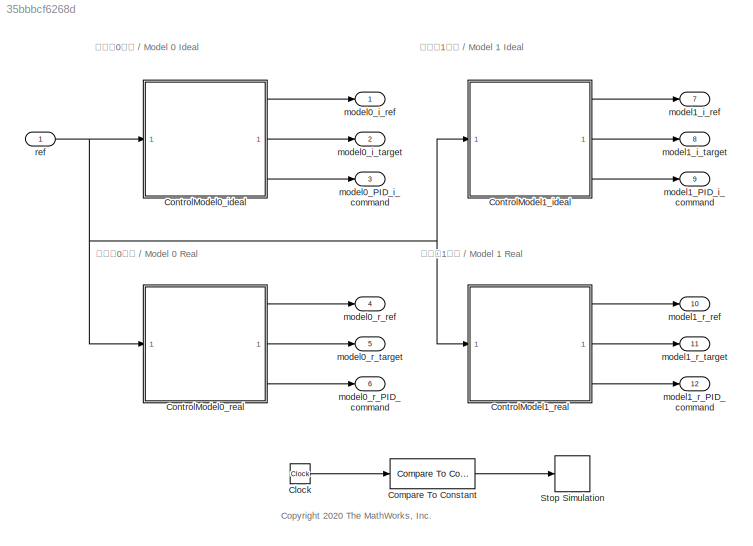
MODEL slx_35bbbcf6268d
KIND model
CONFIG AbsTol = auto
CONFIG EnableMultiTasking = off
CONFIG FixedStep = auto
CONFIG MaxStep = auto
CONFIG MinStep = auto
CONFIG RelTol = 1e-3
CONFIG SampleTimeConstraint = Unconstrained
CONFIG SolverName = VariableStepAuto
CONFIG StartTime = 0.0
CONFIG StopTime = 100
BLOCK [Clock] Clock
BLOCK [Reference] Compare To Constant  REF=simulink/Logic and Bit
Operations/Compare
To Constant
  SourceBlock = simulink/Logic and Bit\nOperations/Compare\nTo Constant
  SourceType = Compare To Constant
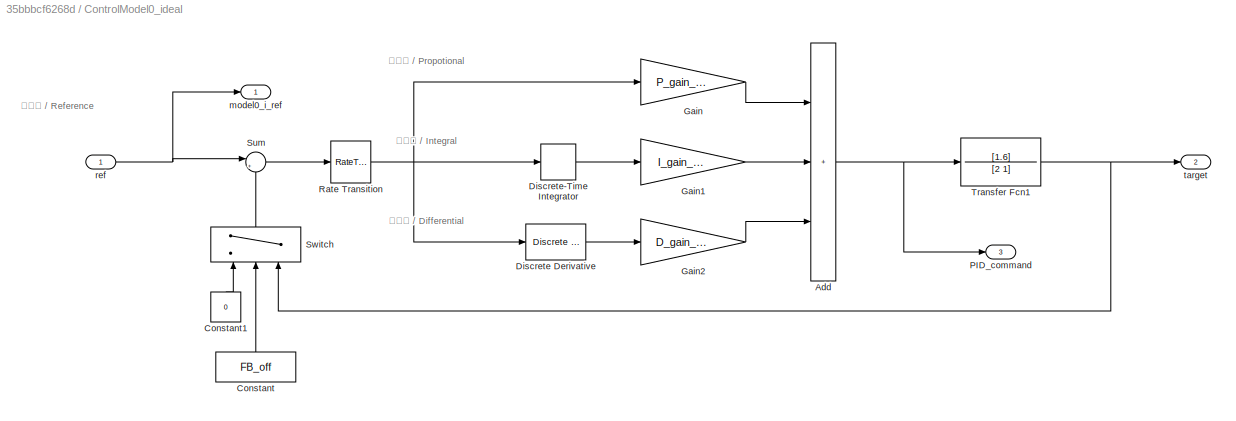
BLOCK [SubSystem] ControlModel0_ideal
BLOCK [Sum] ControlModel0_ideal/Add
  IconShape = rectangular
  Inputs = +++
BLOCK [Constant] ControlModel0_ideal/Constant
  NameLocation = right
  OutDataTypeStr = boolean
  Value = FB_off
BLOCK [Constant] ControlModel0_ideal/Constant1
  NameLocation = right
  Value = 0
BLOCK [Reference] ControlModel0_ideal/Discrete Derivative  REF=simulink/Discrete/Discrete Derivative
  SourceBlock = simulink/Discrete/Discrete Derivative
  SourceType = Discrete Derivative
BLOCK [DiscreteIntegrator] ControlModel0_ideal/Discrete-Time Integrator
  ICPrevOutput = DiscIntNeverNeededParam
  ICPrevScaledInput = DiscIntNeverNeededParam
  InitialConditionSetting = Auto
  SampleTime = -1
BLOCK [Gain] ControlModel0_ideal/Gain
  Gain = P_gain_model
BLOCK [Gain] ControlModel0_ideal/Gain1
  Gain = I_gain_model
BLOCK [Gain] ControlModel0_ideal/Gain2
  Gain = D_gain_model
BLOCK [Outport] ControlModel0_ideal/PID_command
  Port = 3
BLOCK [RateTransition] ControlModel0_ideal/Rate Transition
  OutPortSampleTime = TimeStep
BLOCK [Sum] ControlModel0_ideal/Sum
  Inputs = |+-
BLOCK [Switch] ControlModel0_ideal/Switch
  Criteria = u2 > Threshold
  InputSameDT = off
  NameLocation = right
  SaturateOnIntegerOverflow = off
BLOCK [TransferFcn] ControlModel0_ideal/Transfer Fcn1
  Denominator = [2 1]
  Numerator = [1.6]
BLOCK [Outport] ControlModel0_ideal/model0_i_ref
BLOCK [Inport] ControlModel0_ideal/ref
BLOCK [Outport] ControlModel0_ideal/target
  Port = 2
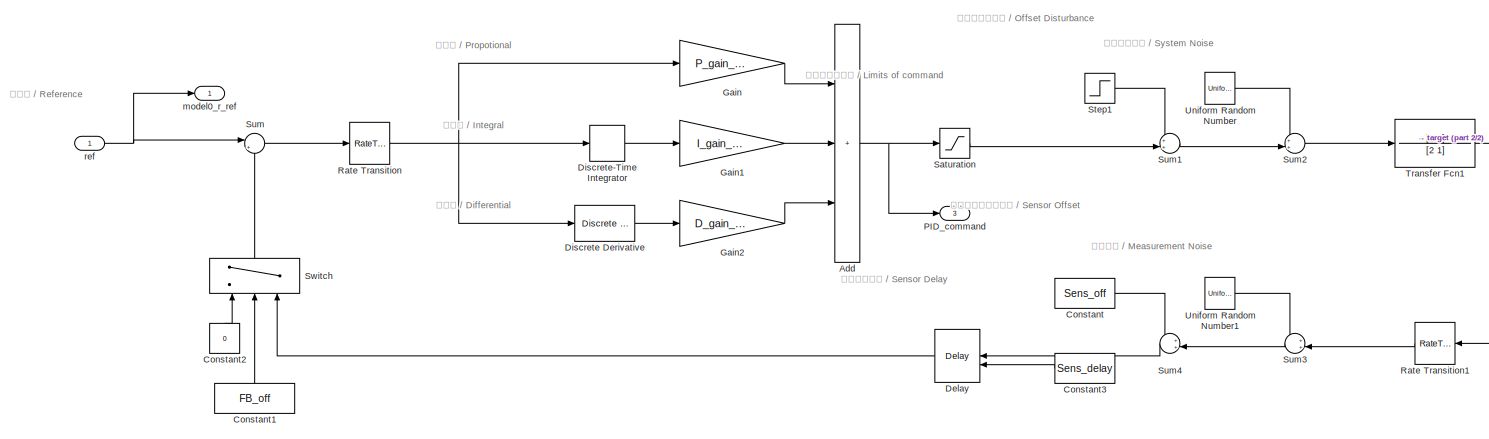
[diagram: ControlModel0_real - part 1/2, most of the canvas]
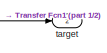
[diagram: ControlModel0_real - part 2/2, middle right region]
BLOCK [SubSystem] ControlModel0_real
BLOCK [Sum] ControlModel0_real/Add
  IconShape = rectangular
  Inputs = +++
BLOCK [Constant] ControlModel0_real/Constant
  Value = Sens_off
BLOCK [Constant] ControlModel0_real/Constant1
  NameLocation = right
  OutDataTypeStr = boolean
  Value = FB_off
BLOCK [Constant] ControlModel0_real/Constant2
  NameLocation = right
  Value = 0
BLOCK [Constant] ControlModel0_real/Constant3
  Value = Sens_delay
BLOCK [Delay] ControlModel0_real/Delay
  DelayLength = Sens_delay
  DelayLengthSource = Input port
  InputPortMap = u0,p1
BLOCK [Reference] ControlModel0_real/Discrete Derivative  REF=simulink/Discrete/Discrete Derivative
  SourceBlock = simulink/Discrete/Discrete Derivative
  SourceType = Discrete Derivative
BLOCK [DiscreteIntegrator] ControlModel0_real/Discrete-Time Integrator
  ICPrevOutput = DiscIntNeverNeededParam
  ICPrevScaledInput = DiscIntNeverNeededParam
  InitialConditionSetting = Auto
  SampleTime = -1
BLOCK [Gain] ControlModel0_real/Gain
  Gain = P_gain_model
BLOCK [Gain] ControlModel0_real/Gain1
  Gain = I_gain_model
BLOCK [Gain] ControlModel0_real/Gain2
  Gain = D_gain_model
BLOCK [Outport] ControlModel0_real/PID_command
  Port = 3
BLOCK [RateTransition] ControlModel0_real/Rate Transition
  OutPortSampleTime = TimeStep
BLOCK [RateTransition] ControlModel0_real/Rate Transition1
  OutPortSampleTime = TimeStep
BLOCK [Saturate] ControlModel0_real/Saturation
  LowerLimit = -Limits
  UpperLimit = Limits
BLOCK [Step] ControlModel0_real/Step1
  After = Off_dist
  SampleTime = TimeStep
  Time = 5
BLOCK [Sum] ControlModel0_real/Sum
  Inputs = |+-
BLOCK [Sum] ControlModel0_real/Sum1
  Inputs = ++|
BLOCK [Sum] ControlModel0_real/Sum2
  Inputs = ++|
BLOCK [Sum] ControlModel0_real/Sum3
  Inputs = ++|
BLOCK [Sum] ControlModel0_real/Sum4
  Inputs = ++|
BLOCK [Switch] ControlModel0_real/Switch
  Criteria = u2 > Threshold
  InputSameDT = off
  NameLocation = right
  SaturateOnIntegerOverflow = off
BLOCK [TransferFcn] ControlModel0_real/Transfer Fcn1
  Denominator = [2 1]
  Numerator = [1.6]
BLOCK [UniformRandomNumber] ControlModel0_real/Uniform Random Number
  Maximum = System_noise
  Minimum = -System_noise
  SampleTime = TimeStep
BLOCK [UniformRandomNumber] ControlModel0_real/Uniform Random Number1
  Maximum = Sensor_noise
  Minimum = -Sensor_noise
  SampleTime = TimeStep
  Seed = 1
BLOCK [Outport] ControlModel0_real/model0_r_ref
BLOCK [Inport] ControlModel0_real/ref
BLOCK [Outport] ControlModel0_real/target
  Port = 2
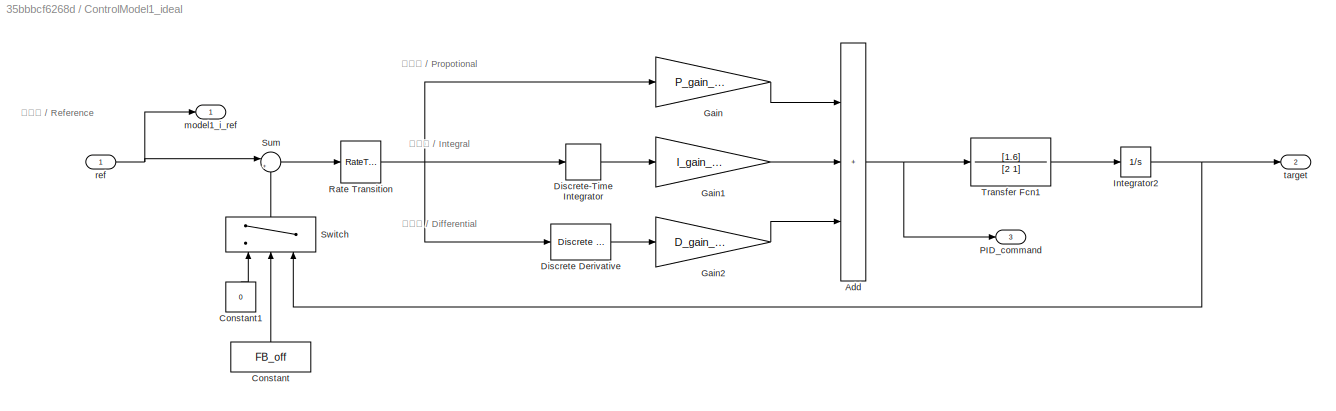
BLOCK [SubSystem] ControlModel1_ideal
BLOCK [Sum] ControlModel1_ideal/Add
  IconShape = rectangular
  Inputs = +++
BLOCK [Constant] ControlModel1_ideal/Constant
  NameLocation = right
  OutDataTypeStr = boolean
  Value = FB_off
BLOCK [Constant] ControlModel1_ideal/Constant1
  NameLocation = right
  Value = 0
BLOCK [Reference] ControlModel1_ideal/Discrete Derivative  REF=simulink/Discrete/Discrete Derivative
  SourceBlock = simulink/Discrete/Discrete Derivative
  SourceType = Discrete Derivative
BLOCK [DiscreteIntegrator] ControlModel1_ideal/Discrete-Time Integrator
  ICPrevOutput = DiscIntNeverNeededParam
  ICPrevScaledInput = DiscIntNeverNeededParam
  InitialConditionSetting = Auto
  SampleTime = -1
BLOCK [Gain] ControlModel1_ideal/Gain
  Gain = P_gain_model
BLOCK [Gain] ControlModel1_ideal/Gain1
  Gain = I_gain_model
BLOCK [Gain] ControlModel1_ideal/Gain2
  Gain = D_gain_model
BLOCK [Integrator] ControlModel1_ideal/Integrator2
BLOCK [Outport] ControlModel1_ideal/PID_command
  Port = 3
BLOCK [RateTransition] ControlModel1_ideal/Rate Transition
  OutPortSampleTime = TimeStep
BLOCK [Sum] ControlModel1_ideal/Sum
  Inputs = |+-
BLOCK [Switch] ControlModel1_ideal/Switch
  Criteria = u2 > Threshold
  InputSameDT = off
  NameLocation = right
  SaturateOnIntegerOverflow = off
BLOCK [TransferFcn] ControlModel1_ideal/Transfer Fcn1
  Denominator = [2 1]
  Numerator = [1.6]
BLOCK [Outport] ControlModel1_ideal/model1_i_ref
BLOCK [Inport] ControlModel1_ideal/ref
BLOCK [Outport] ControlModel1_ideal/target
  Port = 2
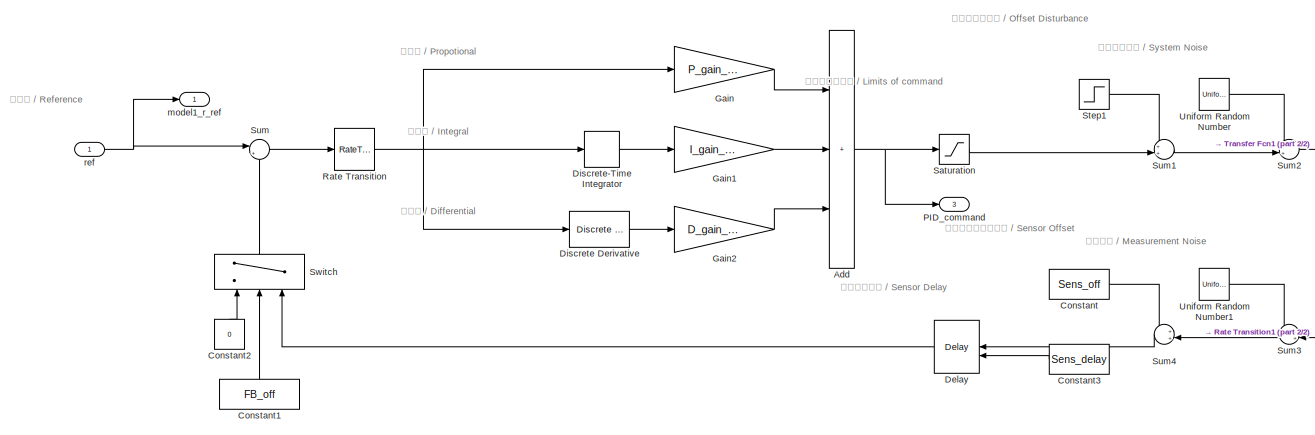
[diagram: ControlModel1_real - part 1/2, most of the canvas]
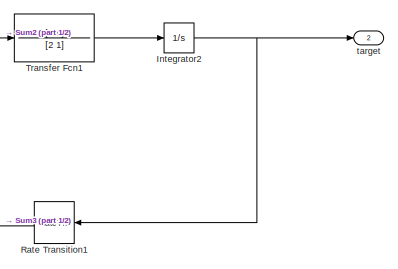
[diagram: ControlModel1_real - part 2/2, middle right region]
BLOCK [SubSystem] ControlModel1_real
BLOCK [Sum] ControlModel1_real/Add
  IconShape = rectangular
  Inputs = +++
BLOCK [Constant] ControlModel1_real/Constant
  Value = Sens_off
BLOCK [Constant] ControlModel1_real/Constant1
  NameLocation = right
  OutDataTypeStr = boolean
  Value = FB_off
BLOCK [Constant] ControlModel1_real/Constant2
  NameLocation = right
  Value = 0
BLOCK [Constant] ControlModel1_real/Constant3
  Value = Sens_delay
BLOCK [Delay] ControlModel1_real/Delay
  DelayLength = Sens_delay
  DelayLengthSource = Input port
  InputPortMap = u0,p1
BLOCK [Reference] ControlModel1_real/Discrete Derivative  REF=simulink/Discrete/Discrete Derivative
  SourceBlock = simulink/Discrete/Discrete Derivative
  SourceType = Discrete Derivative
BLOCK [DiscreteIntegrator] ControlModel1_real/Discrete-Time Integrator
  ICPrevOutput = DiscIntNeverNeededParam
  ICPrevScaledInput = DiscIntNeverNeededParam
  InitialConditionSetting = Auto
  SampleTime = -1
BLOCK [Gain] ControlModel1_real/Gain
  Gain = P_gain_model
BLOCK [Gain] ControlModel1_real/Gain1
  Gain = I_gain_model
BLOCK [Gain] ControlModel1_real/Gain2
  Gain = D_gain_model
BLOCK [Integrator] ControlModel1_real/Integrator2
BLOCK [Outport] ControlModel1_real/PID_command
  Port = 3
BLOCK [RateTransition] ControlModel1_real/Rate Transition
  OutPortSampleTime = TimeStep
BLOCK [RateTransition] ControlModel1_real/Rate Transition1
  OutPortSampleTime = TimeStep
BLOCK [Saturate] ControlModel1_real/Saturation
  LowerLimit = -Limits
  UpperLimit = Limits
BLOCK [Step] ControlModel1_real/Step1
  After = Off_dist
  SampleTime = TimeStep
  Time = 20
BLOCK [Sum] ControlModel1_real/Sum
  Inputs = |+-
BLOCK [Sum] ControlModel1_real/Sum1
  Inputs = ++|
BLOCK [Sum] ControlModel1_real/Sum2
  Inputs = ++|
BLOCK [Sum] ControlModel1_real/Sum3
  Inputs = ++|
BLOCK [Sum] ControlModel1_real/Sum4
  Inputs = ++|
BLOCK [Switch] ControlModel1_real/Switch
  Criteria = u2 > Threshold
  InputSameDT = off
  NameLocation = right
  SaturateOnIntegerOverflow = off
BLOCK [TransferFcn] ControlModel1_real/Transfer Fcn1
  Denominator = [2 1]
  Numerator = [1.6]
BLOCK [UniformRandomNumber] ControlModel1_real/Uniform Random Number
  Maximum = System_noise
  Minimum = -System_noise
  SampleTime = TimeStep
BLOCK [UniformRandomNumber] ControlModel1_real/Uniform Random Number1
  Maximum = Sensor_noise
  Minimum = -Sensor_noise
  SampleTime = TimeStep
  Seed = 1
BLOCK [Outport] ControlModel1_real/model1_r_ref
BLOCK [Inport] ControlModel1_real/ref
BLOCK [Outport] ControlModel1_real/target
  Port = 2
BLOCK [Stop] Stop Simulation
BLOCK [Outport] model0_PID_i_command
  Port = 3
BLOCK [Outport] model0_i_ref
BLOCK [Outport] model0_i_target
  Port = 2
BLOCK [Outport] model0_r_PID_command
  Port = 6
BLOCK [Outport] model0_r_ref
  Port = 4
BLOCK [Outport] model0_r_target
  Port = 5
BLOCK [Outport] model1_PID_i_command
  Port = 9
BLOCK [Outport] model1_i_ref
  Port = 7
BLOCK [Outport] model1_i_target
  Port = 8
BLOCK [Outport] model1_r_PID_command
  Port = 12
BLOCK [Outport] model1_r_ref
  Port = 10
BLOCK [Outport] model1_r_target
  Port = 11
BLOCK [Inport] ref
ANNOTATION (root): <copyright redacted>
ANNOTATION (root): モデル0現実 / Model 0 Real
ANNOTATION (root): モデル0理想 / Model 0 Ideal
ANNOTATION (root): モデル1現実 / Model 1 Real
ANNOTATION (root): モデル1理想 / Model 1 Ideal
ANNOTATION ControlModel0_ideal: 微分項 / Differential
ANNOTATION ControlModel0_ideal: 指令値 / Reference
ANNOTATION ControlModel0_ideal: 比例項 / Propotional
ANNOTATION ControlModel0_ideal: 積分項 / Integral
ANNOTATION ControlModel0_real: オフセット外乱 / Offset Disturbance
ANNOTATION ControlModel0_real: システム雑音 / System Noise
ANNOTATION ControlModel0_real: センサーオフセット / Sensor Offset
ANNOTATION ControlModel0_real: 微分項 / Differential
ANNOTATION ControlModel0_real: 指令値 / Reference
ANNOTATION ControlModel0_real: 操作量の上下限 / Limits of command
ANNOTATION ControlModel0_real: 比例項 / Propotional
ANNOTATION ControlModel0_real: 積分項 / Integral
ANNOTATION ControlModel0_real: 観測雑音 / Measurement Noise
ANNOTATION ControlModel0_real: 計測むだ時間 / Sensor Delay
ANNOTATION ControlModel1_ideal: 微分項 / Differential
ANNOTATION ControlModel1_ideal: 指令値 / Reference
ANNOTATION ControlModel1_ideal: 比例項 / Propotional
ANNOTATION ControlModel1_ideal: 積分項 / Integral
ANNOTATION ControlModel1_real: オフセット外乱 / Offset Disturbance
ANNOTATION ControlModel1_real: システム雑音 / System Noise
ANNOTATION ControlModel1_real: センサーオフセット / Sensor Offset
ANNOTATION ControlModel1_real: 微分項 / Differential
ANNOTATION ControlModel1_real: 指令値 / Reference
ANNOTATION ControlModel1_real: 操作量の上下限 / Limits of command
ANNOTATION ControlModel1_real: 比例項 / Propotional
ANNOTATION ControlModel1_real: 積分項 / Integral
ANNOTATION ControlModel1_real: 観測雑音 / Measurement Noise
ANNOTATION ControlModel1_real: 計測むだ時間 / Sensor Delay
LINE Clock:1 -> Compare To Constant:1
LINE Compare To Constant:1 -> Stop Simulation:1
NET ControlModel0_ideal/Add:1 -> ControlModel0_ideal/PID_command:1, ControlModel0_ideal/Transfer Fcn1:1
LINE ControlModel0_ideal/Constant1:1 -> ControlModel0_ideal/Switch:1
LINE ControlModel0_ideal/Constant:1 -> ControlModel0_ideal/Switch:2
LINE ControlModel0_ideal/Discrete Derivative:1 -> ControlModel0_ideal/Gain2:1
LINE ControlModel0_ideal/Discrete-Time Integrator:1 -> ControlModel0_ideal/Gain1:1
LINE ControlModel0_ideal/Gain1:1 -> ControlModel0_ideal/Add:2
LINE ControlModel0_ideal/Gain2:1 -> ControlModel0_ideal/Add:3
LINE ControlModel0_ideal/Gain:1 -> ControlModel0_ideal/Add:1
NET ControlModel0_ideal/Rate Transition:1 -> ControlModel0_ideal/Discrete Derivative:1, ControlModel0_ideal/Discrete-Time Integrator:1, ControlModel0_ideal/Gain:1
LINE ControlModel0_ideal/Sum:1 -> ControlModel0_ideal/Rate Transition:1
LINE ControlModel0_ideal/Switch:1 -> ControlModel0_ideal/Sum:2
NET ControlModel0_ideal/Transfer Fcn1:1 -> ControlModel0_ideal/Switch:3, ControlModel0_ideal/target:1
NET ControlModel0_ideal/ref:1 -> ControlModel0_ideal/Sum:1, ControlModel0_ideal/model0_i_ref:1
LINE ControlModel0_ideal:1 -> model0_i_ref:1
LINE ControlModel0_ideal:2 -> model0_i_target:1
LINE ControlModel0_ideal:3 -> model0_PID_i_command:1
NET ControlModel0_real/Add:1 -> ControlModel0_real/PID_command:1, ControlModel0_real/Saturation:1
LINE ControlModel0_real/Constant1:1 -> ControlModel0_real/Switch:2
LINE ControlModel0_real/Constant2:1 -> ControlModel0_real/Switch:1
LINE ControlModel0_real/Constant3:1 -> ControlModel0_real/Delay:2
LINE ControlModel0_real/Constant:1 -> ControlModel0_real/Sum4:1
LINE ControlModel0_real/Delay:1 -> ControlModel0_real/Switch:3
LINE ControlModel0_real/Discrete Derivative:1 -> ControlModel0_real/Gain2:1
LINE ControlModel0_real/Discrete-Time Integrator:1 -> ControlModel0_real/Gain1:1
LINE ControlModel0_real/Gain1:1 -> ControlModel0_real/Add:2
LINE ControlModel0_real/Gain2:1 -> ControlModel0_real/Add:3
LINE ControlModel0_real/Gain:1 -> ControlModel0_real/Add:1
LINE ControlModel0_real/Rate Transition1:1 -> ControlModel0_real/Sum3:2
NET ControlModel0_real/Rate Transition:1 -> ControlModel0_real/Discrete Derivative:1, ControlModel0_real/Discrete-Time Integrator:1, ControlModel0_real/Gain:1
LINE ControlModel0_real/Saturation:1 -> ControlModel0_real/Sum1:2
LINE ControlModel0_real/Step1:1 -> ControlModel0_real/Sum1:1
LINE ControlModel0_real/Sum1:1 -> ControlModel0_real/Sum2:2
LINE ControlModel0_real/Sum2:1 -> ControlModel0_real/Transfer Fcn1:1
LINE ControlModel0_real/Sum3:1 -> ControlModel0_real/Sum4:2
LINE ControlModel0_real/Sum4:1 -> ControlModel0_real/Delay:1
LINE ControlModel0_real/Sum:1 -> ControlModel0_real/Rate Transition:1
LINE ControlModel0_real/Switch:1 -> ControlModel0_real/Sum:2
NET ControlModel0_real/Transfer Fcn1:1 -> ControlModel0_real/Rate Transition1:1, ControlModel0_real/target:1
LINE ControlModel0_real/Uniform Random Number1:1 -> ControlModel0_real/Sum3:1
LINE ControlModel0_real/Uniform Random Number:1 -> ControlModel0_real/Sum2:1
NET ControlModel0_real/ref:1 -> ControlModel0_real/Sum:1, ControlModel0_real/model0_r_ref:1
LINE ControlModel0_real:1 -> model0_r_ref:1
LINE ControlModel0_real:2 -> model0_r_target:1
LINE ControlModel0_real:3 -> model0_r_PID_command:1
NET ControlModel1_ideal/Add:1 -> ControlModel1_ideal/PID_command:1, ControlModel1_ideal/Transfer Fcn1:1
LINE ControlModel1_ideal/Constant1:1 -> ControlModel1_ideal/Switch:1
LINE ControlModel1_ideal/Constant:1 -> ControlModel1_ideal/Switch:2
LINE ControlModel1_ideal/Discrete Derivative:1 -> ControlModel1_ideal/Gain2:1
LINE ControlModel1_ideal/Discrete-Time Integrator:1 -> ControlModel1_ideal/Gain1:1
LINE ControlModel1_ideal/Gain1:1 -> ControlModel1_ideal/Add:2
LINE ControlModel1_ideal/Gain2:1 -> ControlModel1_ideal/Add:3
LINE ControlModel1_ideal/Gain:1 -> ControlModel1_ideal/Add:1
NET ControlModel1_ideal/Integrator2:1 -> ControlModel1_ideal/Switch:3, ControlModel1_ideal/target:1
NET ControlModel1_ideal/Rate Transition:1 -> ControlModel1_ideal/Discrete Derivative:1, ControlModel1_ideal/Discrete-Time Integrator:1, ControlModel1_ideal/Gain:1
LINE ControlModel1_ideal/Sum:1 -> ControlModel1_ideal/Rate Transition:1
LINE ControlModel1_ideal/Switch:1 -> ControlModel1_ideal/Sum:2
LINE ControlModel1_ideal/Transfer Fcn1:1 -> ControlModel1_ideal/Integrator2:1
NET ControlModel1_ideal/ref:1 -> ControlModel1_ideal/Sum:1, ControlModel1_ideal/model1_i_ref:1
LINE ControlModel1_ideal:1 -> model1_i_ref:1
LINE ControlModel1_ideal:2 -> model1_i_target:1
LINE ControlModel1_ideal:3 -> model1_PID_i_command:1
NET ControlModel1_real/Add:1 -> ControlModel1_real/PID_command:1, ControlModel1_real/Saturation:1
LINE ControlModel1_real/Constant1:1 -> ControlModel1_real/Switch:2
LINE ControlModel1_real/Constant2:1 -> ControlModel1_real/Switch:1
LINE ControlModel1_real/Constant3:1 -> ControlModel1_real/Delay:2
LINE ControlModel1_real/Constant:1 -> ControlModel1_real/Sum4:1
LINE ControlModel1_real/Delay:1 -> ControlModel1_real/Switch:3
LINE ControlModel1_real/Discrete Derivative:1 -> ControlModel1_real/Gain2:1
LINE ControlModel1_real/Discrete-Time Integrator:1 -> ControlModel1_real/Gain1:1
LINE ControlModel1_real/Gain1:1 -> ControlModel1_real/Add:2
LINE ControlModel1_real/Gain2:1 -> ControlModel1_real/Add:3
LINE ControlModel1_real/Gain:1 -> ControlModel1_real/Add:1
NET ControlModel1_real/Integrator2:1 -> ControlModel1_real/Rate Transition1:1, ControlModel1_real/target:1
LINE ControlModel1_real/Rate Transition1:1 -> ControlModel1_real/Sum3:2
NET ControlModel1_real/Rate Transition:1 -> ControlModel1_real/Discrete Derivative:1, ControlModel1_real/Discrete-Time Integrator:1, ControlModel1_real/Gain:1
LINE ControlModel1_real/Saturation:1 -> ControlModel1_real/Sum1:2
LINE ControlModel1_real/Step1:1 -> ControlModel1_real/Sum1:1
LINE ControlModel1_real/Sum1:1 -> ControlModel1_real/Sum2:2
LINE ControlModel1_real/Sum2:1 -> ControlModel1_real/Transfer Fcn1:1
LINE ControlModel1_real/Sum3:1 -> ControlModel1_real/Sum4:2
LINE ControlModel1_real/Sum4:1 -> ControlModel1_real/Delay:1
LINE ControlModel1_real/Sum:1 -> ControlModel1_real/Rate Transition:1
LINE ControlModel1_real/Switch:1 -> ControlModel1_real/Sum:2
LINE ControlModel1_real/Transfer Fcn1:1 -> ControlModel1_real/Integrator2:1
LINE ControlModel1_real/Uniform Random Number1:1 -> ControlModel1_real/Sum3:1
LINE ControlModel1_real/Uniform Random Number:1 -> ControlModel1_real/Sum2:1
NET ControlModel1_real/ref:1 -> ControlModel1_real/Sum:1, ControlModel1_real/model1_r_ref:1
LINE ControlModel1_real:1 -> model1_r_ref:1
LINE ControlModel1_real:2 -> model1_r_target:1
LINE ControlModel1_real:3 -> model1_r_PID_command:1
NET ref:1 -> ControlModel0_ideal:1, ControlModel0_real:1, ControlModel1_ideal:1, ControlModel1_real:1
note: NET lines group one-source signal fan-out (src -> all destinations, sorted); 1:1 wires keep LINE
